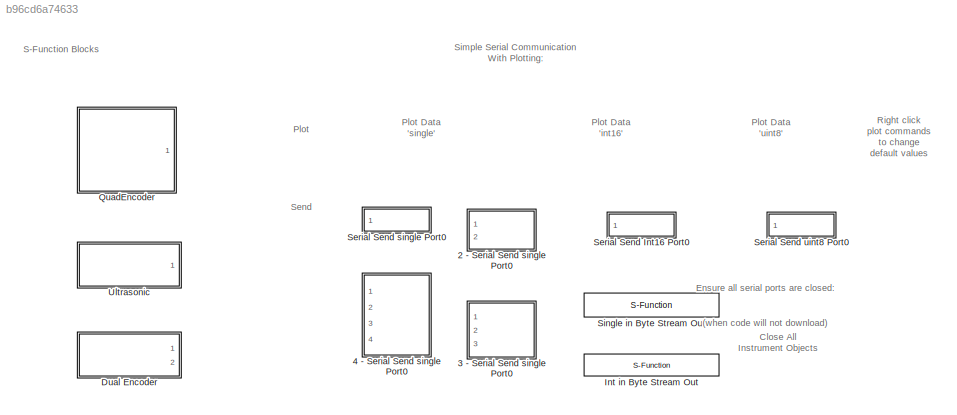
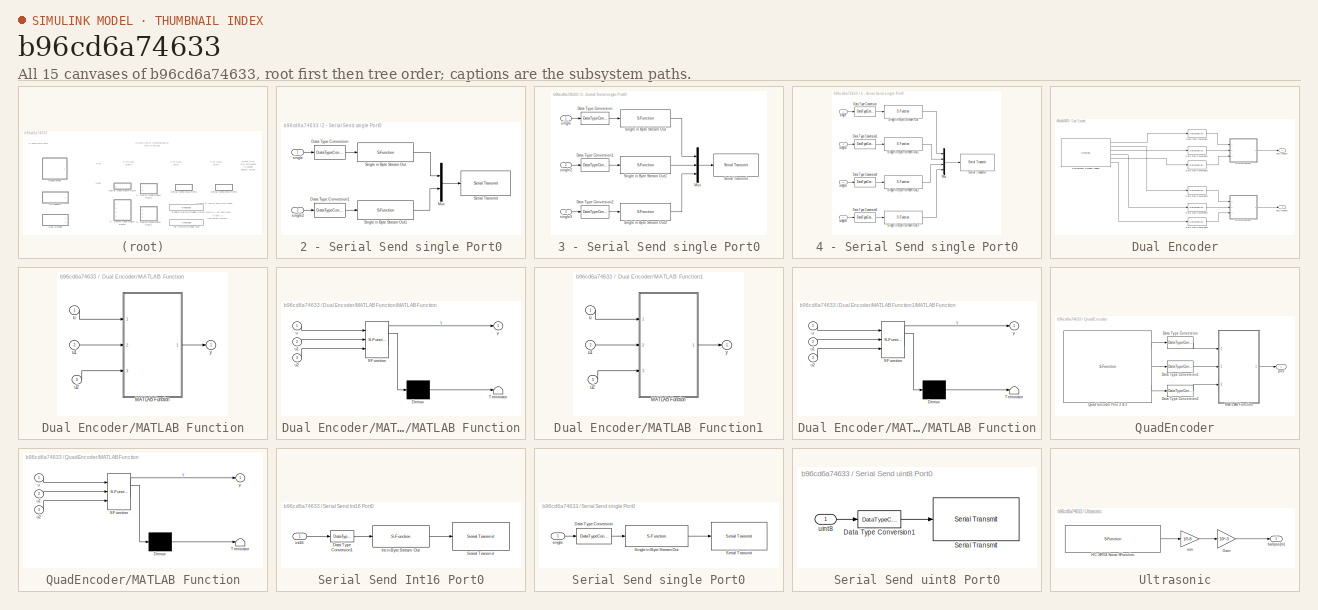
[diagram: thumbnail index - all 15 canvases of the model, root first then tree order]
MODEL slx_b96cd6a74633
KIND library
CONFIG AbsTol = auto
CONFIG EnableMultiTasking = on
CONFIG FixedStep = auto
CONFIG MaxStep = auto
CONFIG MinStep = auto
CONFIG PostLoadFcn = setsysloc(bdroot)
CONFIG RelTol = 1e-3
CONFIG SampleTimeConstraint = Unconstrained
CONFIG Solver = ode45
CONFIG SolverName = ode45
CONFIG StartFcn = open_system('MinSegLibrary','force')
CONFIG StartTime = 0.0
CONFIG StopTime = 10.0
BLOCK [SubSystem] 2 - Serial Send single Port0
  Ports = [2]
  RequestExecContextInheritance = off
  Variant = off
BLOCK [DataTypeConversion] 2 - Serial Send single Port0/Data Type Conversion
  OutDataTypeStr = single
  RndMeth = Floor
  SaturateOnIntegerOverflow = off
BLOCK [DataTypeConversion] 2 - Serial Send single Port0/Data Type Conversion1
  OutDataTypeStr = single
  RndMeth = Floor
  SaturateOnIntegerOverflow = off
BLOCK [Mux] 2 - Serial Send single Port0/Mux
  DisplayOption = bar
  Inputs = 2
  Ports = [2, 1]
BLOCK [Reference] 2 - Serial Send single Port0/Serial Transmit  REF=arduinolib/Serial Transmit
  Ports = [1]
  SourceBlock = arduinolib/Serial Transmit
  SourceProductBaseCode = ARDUINO
  SourceProductName = Simulink Support Package for Arduino Hardware
  SourceType = Arduino Serial Transmit
BLOCK [S-Function] 2 - Serial Send single Port0/Single  in Byte Stream Out
  CopyFcn = set_param(gcb,'LinkStatus','none')
  EnableBusSupport = off
  FunctionName = sf_float2bytes
  InitFcn = try, set_param(gcb,'FunctionName','sf_float2bytes'), end
  OpenFcn = sfunctionwizard(gcbh)
  Ports = [1, 1]
  PreSaveFcn = try, set_param(gcb,'FunctionName','sf_float2bytes'), end
  SFcnIsStateOwnerBlock = off
  SFunctionDeploymentMode = off
  SFunctionModules = sf_float2bytes_wrapper
BLOCK [S-Function] 2 - Serial Send single Port0/Single  in Byte Stream Out1
  CopyFcn = set_param(gcb,'LinkStatus','none')
  EnableBusSupport = off
  FunctionName = sf_float2bytes
  InitFcn = try, set_param(gcb,'FunctionName','sf_float2bytes'), end
  OpenFcn = sfunctionwizard(gcbh)
  Ports = [1, 1]
  PreSaveFcn = try, set_param(gcb,'FunctionName','sf_float2bytes'), end
  SFcnIsStateOwnerBlock = off
  SFunctionDeploymentMode = off
  SFunctionModules = sf_float2bytes_wrapper
BLOCK [Inport] 2 - Serial Send single Port0/single
  IconDisplay = Port number
BLOCK [Inport] 2 - Serial Send single Port0/single2
  IconDisplay = Port number
  Port = 2
BLOCK [SubSystem] 3 - Serial Send single Port0
  AncestorBlock = CSLlib/2 - Serial Send \nsingle Port0
  Ports = [3]
  RequestExecContextInheritance = off
  Variant = off
BLOCK [DataTypeConversion] 3 - Serial Send single Port0/Data Type Conversion
  OutDataTypeStr = single
  RndMeth = Floor
  SaturateOnIntegerOverflow = off
BLOCK [DataTypeConversion] 3 - Serial Send single Port0/Data Type Conversion1
  OutDataTypeStr = single
  RndMeth = Floor
  SaturateOnIntegerOverflow = off
BLOCK [DataTypeConversion] 3 - Serial Send single Port0/Data Type Conversion2
  OutDataTypeStr = single
  RndMeth = Floor
  SaturateOnIntegerOverflow = off
BLOCK [Mux] 3 - Serial Send single Port0/Mux
  DisplayOption = bar
  Inputs = 3
  Ports = [3, 1]
BLOCK [Reference] 3 - Serial Send single Port0/Serial Transmit  REF=arduinolib/Serial Transmit
  Ports = [1]
  SourceBlock = arduinolib/Serial Transmit
  SourceProductBaseCode = ARDUINO
  SourceProductName = Simulink Support Package for Arduino Hardware
  SourceType = Arduino Serial Transmit
BLOCK [S-Function] 3 - Serial Send single Port0/Single  in Byte Stream Out
  CopyFcn = set_param(gcb,'LinkStatus','none')
  EnableBusSupport = off
  FunctionName = sf_float2bytes
  InitFcn = try, set_param(gcb,'FunctionName','sf_float2bytes'), end
  OpenFcn = sfunctionwizard(gcbh)
  Ports = [1, 1]
  PreSaveFcn = try, set_param(gcb,'FunctionName','sf_float2bytes'), end
  SFcnIsStateOwnerBlock = off
  SFunctionDeploymentMode = off
  SFunctionModules = sf_float2bytes_wrapper
BLOCK [S-Function] 3 - Serial Send single Port0/Single  in Byte Stream Out1
  CopyFcn = set_param(gcb,'LinkStatus','none')
  EnableBusSupport = off
  FunctionName = sf_float2bytes
  InitFcn = try, set_param(gcb,'FunctionName','sf_float2bytes'), end
  OpenFcn = sfunctionwizard(gcbh)
  Ports = [1, 1]
  PreSaveFcn = try, set_param(gcb,'FunctionName','sf_float2bytes'), end
  SFcnIsStateOwnerBlock = off
  SFunctionDeploymentMode = off
  SFunctionModules = sf_float2bytes_wrapper
BLOCK [S-Function] 3 - Serial Send single Port0/Single  in Byte Stream Out2
  CopyFcn = set_param(gcb,'LinkStatus','none')
  EnableBusSupport = off
  FunctionName = sf_float2bytes
  InitFcn = try, set_param(gcb,'FunctionName','sf_float2bytes'), end
  OpenFcn = sfunctionwizard(gcbh)
  Ports = [1, 1]
  PreSaveFcn = try, set_param(gcb,'FunctionName','sf_float2bytes'), end
  SFcnIsStateOwnerBlock = off
  SFunctionDeploymentMode = off
  SFunctionModules = sf_float2bytes_wrapper
BLOCK [Inport] 3 - Serial Send single Port0/single
  IconDisplay = Port number
BLOCK [Inport] 3 - Serial Send single Port0/single2
  IconDisplay = Port number
  Port = 2
BLOCK [Inport] 3 - Serial Send single Port0/single3
  IconDisplay = Port number
  Port = 3
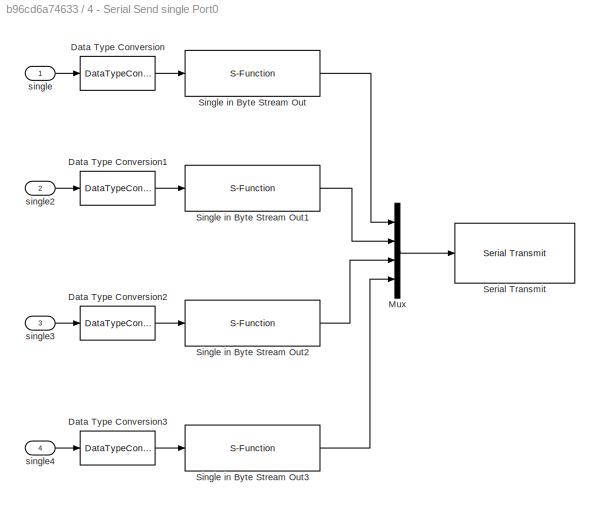
BLOCK [SubSystem] 4 - Serial Send single Port0
  AncestorBlock = CSLlib/3 - Serial Send \nsingle Port0
  Ports = [4]
  RequestExecContextInheritance = off
  Variant = off
BLOCK [DataTypeConversion] 4 - Serial Send single Port0/Data Type Conversion
  OutDataTypeStr = single
  RndMeth = Floor
  SaturateOnIntegerOverflow = off
BLOCK [DataTypeConversion] 4 - Serial Send single Port0/Data Type Conversion1
  OutDataTypeStr = single
  RndMeth = Floor
  SaturateOnIntegerOverflow = off
BLOCK [DataTypeConversion] 4 - Serial Send single Port0/Data Type Conversion2
  OutDataTypeStr = single
  RndMeth = Floor
  SaturateOnIntegerOverflow = off
BLOCK [DataTypeConversion] 4 - Serial Send single Port0/Data Type Conversion3
  OutDataTypeStr = single
  RndMeth = Floor
  SaturateOnIntegerOverflow = off
BLOCK [Mux] 4 - Serial Send single Port0/Mux
  DisplayOption = bar
  Ports = [4, 1]
BLOCK [Reference] 4 - Serial Send single Port0/Serial Transmit  REF=arduinolib/Serial Transmit
  Ports = [1]
  SourceBlock = arduinolib/Serial Transmit
  SourceProductBaseCode = ARDUINO
  SourceProductName = Simulink Support Package for Arduino Hardware
  SourceType = Arduino Serial Transmit
BLOCK [S-Function] 4 - Serial Send single Port0/Single  in Byte Stream Out
  CopyFcn = set_param(gcb,'LinkStatus','none')
  EnableBusSupport = off
  FunctionName = sf_float2bytes
  InitFcn = try, set_param(gcb,'FunctionName','sf_float2bytes'), end
  OpenFcn = sfunctionwizard(gcbh)
  Ports = [1, 1]
  PreSaveFcn = try, set_param(gcb,'FunctionName','sf_float2bytes'), end
  SFcnIsStateOwnerBlock = off
  SFunctionDeploymentMode = off
  SFunctionModules = sf_float2bytes_wrapper
BLOCK [S-Function] 4 - Serial Send single Port0/Single  in Byte Stream Out1
  CopyFcn = set_param(gcb,'LinkStatus','none')
  EnableBusSupport = off
  FunctionName = sf_float2bytes
  InitFcn = try, set_param(gcb,'FunctionName','sf_float2bytes'), end
  OpenFcn = sfunctionwizard(gcbh)
  Ports = [1, 1]
  PreSaveFcn = try, set_param(gcb,'FunctionName','sf_float2bytes'), end
  SFcnIsStateOwnerBlock = off
  SFunctionDeploymentMode = off
  SFunctionModules = sf_float2bytes_wrapper
BLOCK [S-Function] 4 - Serial Send single Port0/Single  in Byte Stream Out2
  CopyFcn = set_param(gcb,'LinkStatus','none')
  EnableBusSupport = off
  FunctionName = sf_float2bytes
  InitFcn = try, set_param(gcb,'FunctionName','sf_float2bytes'), end
  OpenFcn = sfunctionwizard(gcbh)
  Ports = [1, 1]
  PreSaveFcn = try, set_param(gcb,'FunctionName','sf_float2bytes'), end
  SFcnIsStateOwnerBlock = off
  SFunctionDeploymentMode = off
  SFunctionModules = sf_float2bytes_wrapper
BLOCK [S-Function] 4 - Serial Send single Port0/Single  in Byte Stream Out3
  CopyFcn = set_param(gcb,'LinkStatus','none')
  EnableBusSupport = off
  FunctionName = sf_float2bytes
  InitFcn = try, set_param(gcb,'FunctionName','sf_float2bytes'), end
  OpenFcn = sfunctionwizard(gcbh)
  Ports = [1, 1]
  PreSaveFcn = try, set_param(gcb,'FunctionName','sf_float2bytes'), end
  SFcnIsStateOwnerBlock = off
  SFunctionDeploymentMode = off
  SFunctionModules = sf_float2bytes_wrapper
BLOCK [Inport] 4 - Serial Send single Port0/single
  IconDisplay = Port number
BLOCK [Inport] 4 - Serial Send single Port0/single2
  IconDisplay = Port number
  Port = 2
BLOCK [Inport] 4 - Serial Send single Port0/single3
  IconDisplay = Port number
  Port = 3
BLOCK [Inport] 4 - Serial Send single Port0/single4
  IconDisplay = Port number
  Port = 4
BLOCK [SubSystem] Dual Encoder
  Ports = [0, 2]
  RequestExecContextInheritance = off
  Variant = off
BLOCK [DataTypeConversion] Dual Encoder/Data Type Conversion
  OutDataTypeStr = double
  RndMeth = Floor
  SaturateOnIntegerOverflow = off
BLOCK [DataTypeConversion] Dual Encoder/Data Type Conversion1
  OutDataTypeStr = double
  RndMeth = Floor
  SaturateOnIntegerOverflow = off
BLOCK [DataTypeConversion] Dual Encoder/Data Type Conversion2
  OutDataTypeStr = double
  RndMeth = Floor
  SaturateOnIntegerOverflow = off
BLOCK [DataTypeConversion] Dual Encoder/Data Type Conversion3
  OutDataTypeStr = double
  RndMeth = Floor
  SaturateOnIntegerOverflow = off
BLOCK [DataTypeConversion] Dual Encoder/Data Type Conversion4
  OutDataTypeStr = double
  RndMeth = Floor
  SaturateOnIntegerOverflow = off
BLOCK [DataTypeConversion] Dual Encoder/Data Type Conversion5
  OutDataTypeStr = double
  RndMeth = Floor
  SaturateOnIntegerOverflow = off
BLOCK [S-Function] Dual Encoder/Dual Encoder Reading (Shields)
  CopyFcn = set_param(gcbh,'LinkStatus','none')
  EnableBusSupport = off
  FunctionName = sf_QuadEncoder_18_19_20_21
  InitFcn = try, set_param(gcb,'FunctionName','sf_QuadEncoder_18_19_20_21'), end
  OpenFcn = sfunctionwizard(gcbh)
  Parameters = uint8([0 1]),uint8([18 20]),uint8([19 21])
  Ports = [0, 6]
  PreSaveFcn = try, set_param(gcb,'FunctionName','sf_QuadEncoder_18_19_20_21'), end
  SFcnIsStateOwnerBlock = off
  SFunctionDeploymentMode = off
  SFunctionModules = sf_QuadEncoder_18_19_20_21_wrapper
BLOCK [Outport] Dual Encoder/Enc1 Position
  IconDisplay = Port number
BLOCK [Outport] Dual Encoder/Enc2 Position
  IconDisplay = Port number
  Port = 2
BLOCK [SubSystem] Dual Encoder/MATLAB Function
  ErrorFcn = Stateflow.Translate.translate
  PermitHierarchicalResolution = ExplicitOnly
  Ports = [3, 1]
  RequestExecContextInheritance = off
  TreatAsAtomicUnit = on
  Variant = off
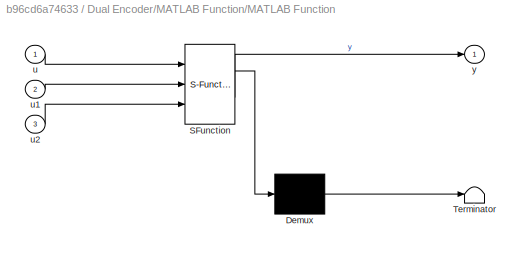
BLOCK [SubSystem] Dual Encoder/MATLAB Function/MATLAB Function
  ErrorFcn = Stateflow.Translate.translate
  PermitHierarchicalResolution = ExplicitOnly
  Ports = [3, 1]
  RequestExecContextInheritance = off
  SFBlockType = MATLAB Function
  TreatAsAtomicUnit = on
  Variant = off
BLOCK [Demux] Dual Encoder/MATLAB Function/MATLAB Function/ Demux 
  Outputs = 1
  Ports = [1, 1]
BLOCK [S-Function] Dual Encoder/MATLAB Function/MATLAB Function/ SFunction 
  EnableBusSupport = off
  FunctionName = sf_sfun
  PortCounts = [3 2]
  Ports = [3, 2]
  SFcnIsStateOwnerBlock = off
  SFunctionDeploymentMode = off
  Tag = Stateflow S-Function THLlib 2
BLOCK [Terminator] Dual Encoder/MATLAB Function/MATLAB Function/ Terminator 
BLOCK [Inport] Dual Encoder/MATLAB Function/MATLAB Function/u
  IconDisplay = Port number
BLOCK [Inport] Dual Encoder/MATLAB Function/MATLAB Function/u1
  IconDisplay = Port number
  Port = 2
BLOCK [Inport] Dual Encoder/MATLAB Function/MATLAB Function/u2
  IconDisplay = Port number
  Port = 3
BLOCK [Outport] Dual Encoder/MATLAB Function/MATLAB Function/y
  IconDisplay = Port number
BLOCK [Inport] Dual Encoder/MATLAB Function/u
  IconDisplay = Port number
BLOCK [Inport] Dual Encoder/MATLAB Function/u1
  IconDisplay = Port number
  Port = 2
BLOCK [Inport] Dual Encoder/MATLAB Function/u2
  IconDisplay = Port number
  Port = 3
BLOCK [Outport] Dual Encoder/MATLAB Function/y
  IconDisplay = Port number
BLOCK [SubSystem] Dual Encoder/MATLAB Function1
  ErrorFcn = Stateflow.Translate.translate
  PermitHierarchicalResolution = ExplicitOnly
  Ports = [3, 1]
  RequestExecContextInheritance = off
  TreatAsAtomicUnit = on
  Variant = off
BLOCK [SubSystem] Dual Encoder/MATLAB Function1/MATLAB Function
  ErrorFcn = Stateflow.Translate.translate
  PermitHierarchicalResolution = ExplicitOnly
  Ports = [3, 1]
  RequestExecContextInheritance = off
  SFBlockType = MATLAB Function
  TreatAsAtomicUnit = on
  Variant = off
BLOCK [Demux] Dual Encoder/MATLAB Function1/MATLAB Function/ Demux 
  Outputs = 1
  Ports = [1, 1]
BLOCK [S-Function] Dual Encoder/MATLAB Function1/MATLAB Function/ SFunction 
  EnableBusSupport = off
  FunctionName = sf_sfun
  PortCounts = [3 2]
  Ports = [3, 2]
  SFcnIsStateOwnerBlock = off
  SFunctionDeploymentMode = off
  Tag = Stateflow S-Function THLlib 3
BLOCK [Terminator] Dual Encoder/MATLAB Function1/MATLAB Function/ Terminator 
BLOCK [Inport] Dual Encoder/MATLAB Function1/MATLAB Function/u
  IconDisplay = Port number
BLOCK [Inport] Dual Encoder/MATLAB Function1/MATLAB Function/u1
  IconDisplay = Port number
  Port = 2
BLOCK [Inport] Dual Encoder/MATLAB Function1/MATLAB Function/u2
  IconDisplay = Port number
  Port = 3
BLOCK [Outport] Dual Encoder/MATLAB Function1/MATLAB Function/y
  IconDisplay = Port number
BLOCK [Inport] Dual Encoder/MATLAB Function1/u
  IconDisplay = Port number
BLOCK [Inport] Dual Encoder/MATLAB Function1/u1
  IconDisplay = Port number
  Port = 2
BLOCK [Inport] Dual Encoder/MATLAB Function1/u2
  IconDisplay = Port number
  Port = 3
BLOCK [Outport] Dual Encoder/MATLAB Function1/y
  IconDisplay = Port number
BLOCK [S-Function] Int in Byte Stream Out
  CopyFcn = set_param(gcb,'LinkStatus','none')
  EnableBusSupport = off
  FunctionName = sf_int2bytes
  InitFcn = try, set_param(gcb,'FunctionName','sf_int2bytes'), end
  OpenFcn = sfunctionwizard(gcbh)
  Ports = [1, 1]
  PreSaveFcn = try, set_param(gcb,'FunctionName','sf_int2bytes'), end
  SFcnIsStateOwnerBlock = off
  SFunctionDeploymentMode = off
  SFunctionModules = sf_int2bytes_wrapper
BLOCK [SubSystem] QuadEncoder
  Ports = [0, 1]
  RequestExecContextInheritance = off
  Variant = off
BLOCK [DataTypeConversion] QuadEncoder/Data Type Conversion
  OutDataTypeStr = double
  RndMeth = Floor
  SaturateOnIntegerOverflow = off
BLOCK [DataTypeConversion] QuadEncoder/Data Type Conversion1
  OutDataTypeStr = double
  RndMeth = Floor
  SaturateOnIntegerOverflow = off
BLOCK [DataTypeConversion] QuadEncoder/Data Type Conversion2
  OutDataTypeStr = double
  RndMeth = Floor
  SaturateOnIntegerOverflow = off
BLOCK [SubSystem] QuadEncoder/MATLAB Function
  ErrorFcn = Stateflow.Translate.translate
  PermitHierarchicalResolution = ExplicitOnly
  Ports = [3, 1]
  RequestExecContextInheritance = off
  SFBlockType = MATLAB Function
  TreatAsAtomicUnit = on
  Variant = off
BLOCK [Demux] QuadEncoder/MATLAB Function/ Demux 
  Outputs = 1
  Ports = [1, 1]
BLOCK [S-Function] QuadEncoder/MATLAB Function/ SFunction 
  EnableBusSupport = off
  FunctionName = sf_sfun
  PortCounts = [3 2]
  Ports = [3, 2]
  SFcnIsStateOwnerBlock = off
  SFunctionDeploymentMode = off
  Tag = Stateflow S-Function THLlib 1
BLOCK [Terminator] QuadEncoder/MATLAB Function/ Terminator 
BLOCK [Inport] QuadEncoder/MATLAB Function/u
  IconDisplay = Port number
BLOCK [Inport] QuadEncoder/MATLAB Function/u1
  IconDisplay = Port number
  Port = 2
BLOCK [Inport] QuadEncoder/MATLAB Function/u2
  IconDisplay = Port number
  Port = 3
BLOCK [Outport] QuadEncoder/MATLAB Function/y
  IconDisplay = Port number
BLOCK [S-Function] QuadEncoder/Quad Encoder Pins 2 & 3
  CopyFcn = set_param(gcbh,'LinkStatus','none')
  EnableBusSupport = off
  FunctionName = sf_QuadEncoderCarion
  InitFcn = try, set_param(gcb,'FunctionName','sf_QuadEncoderCarion'), end
  OpenFcn = sfunctionwizard(gcbh)
  Parameters = uint8(0),uint8(2),uint8(3)
  Ports = [0, 3]
  PreSaveFcn = try, set_param(gcb,'FunctionName','sf_QuadEncoderCarion'), end
  SFcnIsStateOwnerBlock = off
  SFunctionDeploymentMode = off
  SFunctionModules = sf_QuadEncoderCarion_wrapper
BLOCK [Outport] QuadEncoder/pos
  IconDisplay = Port number
BLOCK [SubSystem] Serial Send Int16 Port0
  Ports = [1]
  RequestExecContextInheritance = off
  Variant = off
BLOCK [DataTypeConversion] Serial Send Int16 Port0/Data Type Conversion1
  OutDataTypeStr = int16
  RndMeth = Floor
  SaturateOnIntegerOverflow = off
BLOCK [S-Function] Serial Send Int16 Port0/Int in Byte Stream Out
  CopyFcn = set_param(gcb,'LinkStatus','none')
  EnableBusSupport = off
  FunctionName = sf_int2bytes
  InitFcn = try, set_param(gcb,'FunctionName','sf_int2bytes'), end
  OpenFcn = sfunctionwizard(gcbh)
  Ports = [1, 1]
  PreSaveFcn = try, set_param(gcb,'FunctionName','sf_int2bytes'), end
  SFcnIsStateOwnerBlock = off
  SFunctionDeploymentMode = off
  SFunctionModules = sf_int2bytes_wrapper
BLOCK [Reference] Serial Send Int16 Port0/Serial Transmit  REF=arduinolib/Serial Transmit
  Ports = [1]
  SourceBlock = arduinolib/Serial Transmit
  SourceProductBaseCode = ARDUINO
  SourceProductName = Simulink Support Package for Arduino Hardware
  SourceType = Arduino Serial Transmit
BLOCK [Inport] Serial Send Int16 Port0/int16
  IconDisplay = Port number
BLOCK [SubSystem] Serial Send single Port0
  Ports = [1]
  RequestExecContextInheritance = off
  Variant = off
BLOCK [DataTypeConversion] Serial Send single Port0/Data Type Conversion
  OutDataTypeStr = single
  RndMeth = Floor
  SaturateOnIntegerOverflow = off
BLOCK [Reference] Serial Send single Port0/Serial Transmit  REF=arduinolib/Serial Transmit
  Ports = [1]
  SourceBlock = arduinolib/Serial Transmit
  SourceProductBaseCode = ARDUINO
  SourceProductName = Simulink Support Package for Arduino Hardware
  SourceType = Arduino Serial Transmit
BLOCK [S-Function] Serial Send single Port0/Single  in Byte Stream Out
  CopyFcn = set_param(gcb,'LinkStatus','none')
  EnableBusSupport = off
  FunctionName = sf_float2bytes
  InitFcn = try, set_param(gcb,'FunctionName','sf_float2bytes'), end
  OpenFcn = sfunctionwizard(gcbh)
  Ports = [1, 1]
  PreSaveFcn = try, set_param(gcb,'FunctionName','sf_float2bytes'), end
  SFcnIsStateOwnerBlock = off
  SFunctionDeploymentMode = off
  SFunctionModules = sf_float2bytes_wrapper
BLOCK [Inport] Serial Send single Port0/single
  IconDisplay = Port number
BLOCK [SubSystem] Serial Send uint8 Port0
  Ports = [1]
  RequestExecContextInheritance = off
  Variant = off
BLOCK [DataTypeConversion] Serial Send uint8 Port0/Data Type Conversion1
  OutDataTypeStr = uint8
  RndMeth = Floor
  SaturateOnIntegerOverflow = off
BLOCK [Reference] Serial Send uint8 Port0/Serial Transmit  REF=arduinolib/Serial Transmit
  Ports = [1]
  SourceBlock = arduinolib/Serial Transmit
  SourceProductBaseCode = ARDUINO
  SourceProductName = Simulink Support Package for Arduino Hardware
  SourceType = Arduino Serial Transmit
BLOCK [Inport] Serial Send uint8 Port0/uint8
  IconDisplay = Port number
BLOCK [S-Function] Single  in Byte Stream Out
  CopyFcn = set_param(gcb,'LinkStatus','none')
  EnableBusSupport = off
  FunctionName = sf_float2bytes
  InitFcn = try, set_param(gcb,'FunctionName','sf_float2bytes'), end
  OpenFcn = sfunctionwizard(gcbh)
  Ports = [1, 1]
  PreSaveFcn = try, set_param(gcb,'FunctionName','sf_float2bytes'), end
  SFcnIsStateOwnerBlock = off
  SFunctionDeploymentMode = off
  SFunctionModules = sf_float2bytes_wrapper
BLOCK [SubSystem] Ultrasonic
  Ports = [0, 1]
  RequestExecContextInheritance = off
  Variant = off
BLOCK [Gain] Ultrasonic/Gain
  Gain = 10^-3
  OutDataTypeStr = Inherit: Inherit via internal rule
  ParamDataTypeStr = Inherit: Inherit via internal rule
  SaturateOnIntegerOverflow = off
BLOCK [S-Function] Ultrasonic/HC-SR04 Sonar SFunction
  CopyFcn = set_param(gcbh,'LinkStatus','none')
  EnableBusSupport = off
  FunctionName = sf_HCSR04_Carion
  InitFcn = try, set_param(gcb,'FunctionName','sf_HCSR04_Carion'), end
  OpenFcn = sfunctionwizard(gcbh)
  Ports = [0, 1]
  PreSaveFcn = try, set_param(gcb,'FunctionName','sf_HCSR04_Carion'), end
  SFcnIsStateOwnerBlock = off
  SFunctionDeploymentMode = off
  SFunctionModules = sf_HCSR04_Carion_wrapper
BLOCK [Outport] Ultrasonic/ballpos(m)
  IconDisplay = Port number
BLOCK [Gain] Ultrasonic/mm
  Gain = 1/5.8
  OutDataTypeStr = Inherit: Inherit via internal rule
  ParamDataTypeStr = Inherit: Inherit via internal rule
  SaturateOnIntegerOverflow = off
ANNOTATION (root): Close All Instrument Objects
ANNOTATION (root): Ensure all serial ports are closed: (when code will not download)
ANNOTATION (root): Plot
ANNOTATION (root): Plot Data 'int16'
ANNOTATION (root): Plot Data 'single'
ANNOTATION (root): Plot Data 'uint8'
ANNOTATION (root): Right click plot commands to change default values
ANNOTATION (root): S-Function Blocks
ANNOTATION (root): Send
ANNOTATION (root): Simple Serial Communication With Plotting:
LINE 2 - Serial Send single Port0/Data Type Conversion1:1 -> 2 - Serial Send single Port0/Single  in Byte Stream Out1:1
LINE 2 - Serial Send single Port0/Data Type Conversion:1 -> 2 - Serial Send single Port0/Single  in Byte Stream Out:1
LINE 2 - Serial Send single Port0/Mux:1 -> 2 - Serial Send single Port0/Serial Transmit:1
LINE 2 - Serial Send single Port0/Single  in Byte Stream Out1:1 -> 2 - Serial Send single Port0/Mux:2
LINE 2 - Serial Send single Port0/Single  in Byte Stream Out:1 -> 2 - Serial Send single Port0/Mux:1
LINE 2 - Serial Send single Port0/single2:1 -> 2 - Serial Send single Port0/Data Type Conversion1:1
LINE 2 - Serial Send single Port0/single:1 -> 2 - Serial Send single Port0/Data Type Conversion:1
LINE Dual Encoder/Data Type Conversion1:1 -> Dual Encoder/MATLAB Function:2
LINE Dual Encoder/Data Type Conversion2:1 -> Dual Encoder/MATLAB Function:3
LINE Dual Encoder/Data Type Conversion3:1 -> Dual Encoder/MATLAB Function1:1
LINE Dual Encoder/Data Type Conversion4:1 -> Dual Encoder/MATLAB Function1:2
LINE Dual Encoder/Data Type Conversion5:1 -> Dual Encoder/MATLAB Function1:3
LINE Dual Encoder/Data Type Conversion:1 -> Dual Encoder/MATLAB Function:1
LINE Dual Encoder/Dual Encoder Reading (Shields):1 -> Dual Encoder/Data Type Conversion:1
LINE Dual Encoder/Dual Encoder Reading (Shields):2 -> Dual Encoder/Data Type Conversion3:1
LINE Dual Encoder/Dual Encoder Reading (Shields):3 -> Dual Encoder/Data Type Conversion1:1
LINE Dual Encoder/Dual Encoder Reading (Shields):4 -> Dual Encoder/Data Type Conversion4:1
LINE Dual Encoder/Dual Encoder Reading (Shields):5 -> Dual Encoder/Data Type Conversion2:1
LINE Dual Encoder/Dual Encoder Reading (Shields):6 -> Dual Encoder/Data Type Conversion5:1
LINE Dual Encoder/MATLAB Function1:1 -> Dual Encoder/Enc2 Position:1
LINE Dual Encoder/MATLAB Function:1 -> Dual Encoder/Enc1 Position:1
LINE QuadEncoder/Data Type Conversion1:1 -> QuadEncoder/MATLAB Function:2
LINE QuadEncoder/Data Type Conversion2:1 -> QuadEncoder/MATLAB Function:3
LINE QuadEncoder/Data Type Conversion:1 -> QuadEncoder/MATLAB Function:1
LINE QuadEncoder/MATLAB Function:1 -> QuadEncoder/pos:1
LINE QuadEncoder/Quad Encoder Pins 2 & 3:1 -> QuadEncoder/Data Type Conversion:1
LINE QuadEncoder/Quad Encoder Pins 2 & 3:2 -> QuadEncoder/Data Type Conversion1:1
LINE QuadEncoder/Quad Encoder Pins 2 & 3:3 -> QuadEncoder/Data Type Conversion2:1
LINE Serial Send Int16 Port0/Data Type Conversion1:1 -> Serial Send Int16 Port0/Int in Byte Stream Out:1
LINE Serial Send Int16 Port0/Int in Byte Stream Out:1 -> Serial Send Int16 Port0/Serial Transmit:1
LINE Serial Send Int16 Port0/int16:1 -> Serial Send Int16 Port0/Data Type Conversion1:1
LINE Serial Send single Port0/Data Type Conversion:1 -> Serial Send single Port0/Single  in Byte Stream Out:1
LINE Serial Send single Port0/Single  in Byte Stream Out:1 -> Serial Send single Port0/Serial Transmit:1
LINE Serial Send single Port0/single:1 -> Serial Send single Port0/Data Type Conversion:1
LINE Serial Send uint8 Port0/Data Type Conversion1:1 -> Serial Send uint8 Port0/Serial Transmit:1
LINE Serial Send uint8 Port0/uint8:1 -> Serial Send uint8 Port0/Data Type Conversion1:1
LINE Ultrasonic/Gain:1 -> Ultrasonic/ballpos(m):1
LINE Ultrasonic/HC-SR04 Sonar SFunction:1 -> Ultrasonic/mm:1
LINE Ultrasonic/mm:1 -> Ultrasonic/Gain:1
CHART QuadEncoder/MATLAB Function states=1 transitions=1
  STATE_LABEL 'eML_blk_kernel()'
  STATE_LABEL 'SCRIPT:\nfunction y = fcn(u,u1,u2)\n%#codegen\nmax = 32767;\nmin = -32767;\n\ny = u1*max + u2*min + u;'
CHART Dual Encoder/MATLAB Function/MATLAB Function states=1 transitions=1
  STATE_LABEL 'eML_blk_kernel()'
  STATE_LABEL 'SCRIPT:\nfunction y = fcn(u,u1,u2)\n%#codegen\nmax = 32767;\nmin = -32767;\n\ny = u1*max + u2*min + u;'
CHART Dual Encoder/MATLAB Function1/MATLAB Function states=1 transitions=1
  STATE_LABEL 'eML_blk_kernel()'
  STATE_LABEL 'SCRIPT:\nfunction y = fcn(u,u1,u2)\n%#codegen\nmax = 32767;\nmin = -32767;\n\ny = u1*max + u2*min + u;'
